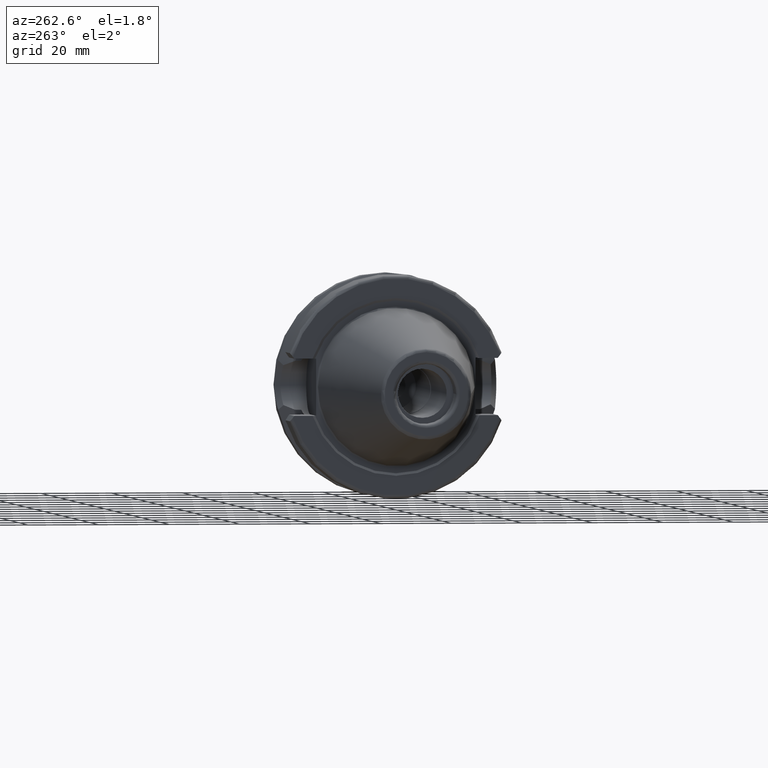
[diagram: clean part render]
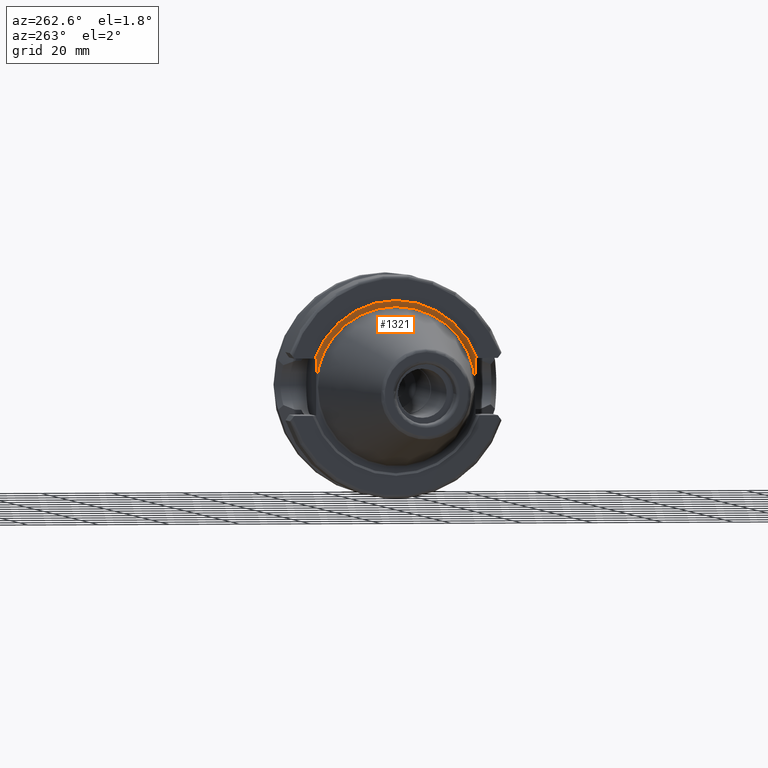
[diagram: same view with one face highlighted and labeled with its STEP entity id]
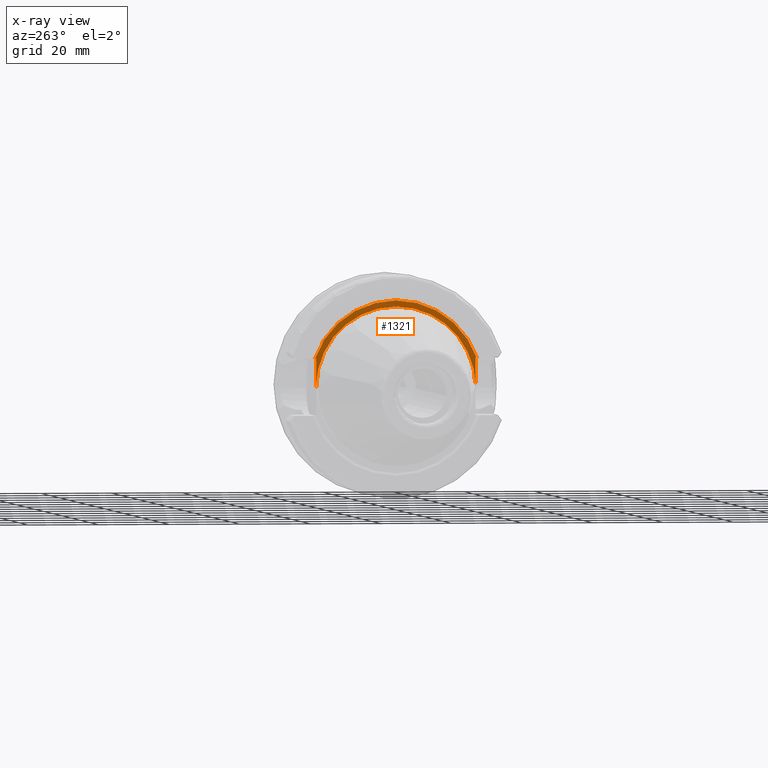
[diagram: x-ray of the same camera — body ghosted, the highlighted face saturated]
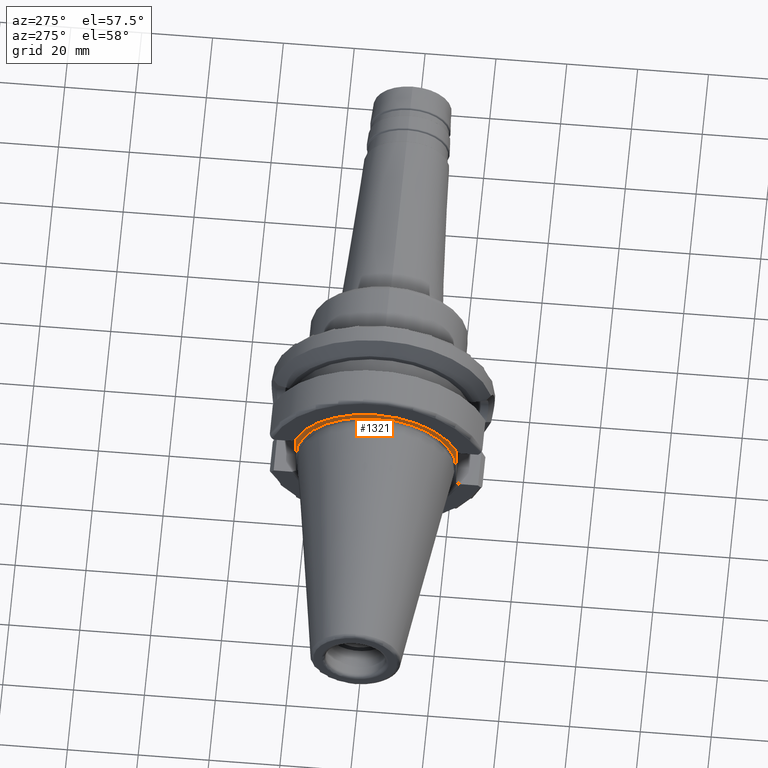
[diagram: same view with one face highlighted and labeled with its STEP entity id]
A machine part, auxiliary view. The second image highlights one B-rep face of the part: STEP entity #1321.
The next image is the same camera in x-ray: the body ghosted, the highlighted face saturated — about 0% of this face is hidden behind the body in this view.
A second angle (auxiliary view) of the same face is appended — the face is thin or edge-on in the first view.
In plain terms, the highlighted planar face has unit normal (-1, 0, 0).
Its self-contained STEP definition (entity closure, byte-faithful):
#87=PLANE('',#1491);
#139=LINE('',#2456,#210);
#144=LINE('',#2470,#215);
#153=LINE('',#2515,#224);
#154=LINE('',#2517,#225);
#210=VECTOR('',#1823,10.);
#215=VECTOR('',#1830,10.);
#224=VECTOR('',#1849,10.);
#225=VECTOR('',#1850,10.);
#317=FACE_OUTER_BOUND('',#404,.T.);
#404=EDGE_LOOP('',(#1109,#1110,#1111,#1112,#1113,#1114,#1115));
#499=CIRCLE('',#1492,24.3071796769724);
#500=CIRCLE('',#1493,22.6);
#501=CIRCLE('',#1494,22.6);
#611=VERTEX_POINT('',#2451);
#612=VERTEX_POINT('',#2455);
#617=VERTEX_POINT('',#2469);
#626=VERTEX_POINT('',#2512);
#627=VERTEX_POINT('',#2514);
#628=VERTEX_POINT('',#2516);
#629=VERTEX_POINT('',#2518);
#780=EDGE_CURVE('',#612,#611,#139,.T.);
#786=EDGE_CURVE('',#617,#612,#144,.T.);
#800=EDGE_CURVE('',#626,#611,#499,.T.);
#801=EDGE_CURVE('',#626,#627,#153,.T.);
#802=EDGE_CURVE('',#627,#628,#154,.T.);
#803=EDGE_CURVE('',#628,#629,#500,.T.);
#804=EDGE_CURVE('',#629,#617,#501,.T.);
#1109=ORIENTED_EDGE('',*,*,#786,.T.);
#1110=ORIENTED_EDGE('',*,*,#780,.T.);
#1111=ORIENTED_EDGE('',*,*,#800,.F.);
#1112=ORIENTED_EDGE('',*,*,#801,.T.);
#1113=ORIENTED_EDGE('',*,*,#802,.T.);
#1114=ORIENTED_EDGE('',*,*,#803,.T.);
#1115=ORIENTED_EDGE('',*,*,#804,.T.);
#1321=ADVANCED_FACE('',(#317),#87,.T.);
#1491=AXIS2_PLACEMENT_3D('',#2511,#1845,#1846);
#1492=AXIS2_PLACEMENT_3D('',#2513,#1847,#1848);
#1493=AXIS2_PLACEMENT_3D('',#2519,#1851,#1852);
#1494=AXIS2_PLACEMENT_3D('',#2520,#1853,#1854);
#1823=DIRECTION('',(0.,-1.,0.));
#1830=DIRECTION('',(0.,0.,1.));
#1845=DIRECTION('center_axis',(-1.,0.,0.));
#1846=DIRECTION('ref_axis',(0.,0.,1.));
#1847=DIRECTION('center_axis',(1.,0.,0.));
#1848=DIRECTION('ref_axis',(0.,0.,-1.));
#1849=DIRECTION('',(0.,-1.,0.));
#1850=DIRECTION('',(0.,0.,-1.));
#1851=DIRECTION('center_axis',(1.,0.,0.));
#1852=DIRECTION('ref_axis',(0.,0.,-1.));
#1853=DIRECTION('center_axis',(1.,0.,0.));
#1854=DIRECTION('ref_axis',(0.,0.,-1.));
#2451=CARTESIAN_POINT('',(1.4,-22.9354852542653,8.05));
#2455=CARTESIAN_POINT('',(1.4,-22.6,8.05));
#2456=CARTESIAN_POINT('',(1.4,0.853589838486224,8.05));
#2469=CARTESIAN_POINT('',(1.4,-22.6,0.));
#2470=CARTESIAN_POINT('',(1.4,-22.6,2.77555756156289E-16));
#2511=CARTESIAN_POINT('Origin',(1.4,24.3071796769724,0.));
#2512=CARTESIAN_POINT('',(1.4,22.9354852542653,8.05));
#2513=CARTESIAN_POINT('Origin',(1.4,0.,0.));
#2514=CARTESIAN_POINT('',(1.4,22.6,8.05));
#2515=CARTESIAN_POINT('',(1.4,23.4535898384862,8.05));
#2516=CARTESIAN_POINT('',(1.4,22.6,0.));
#2517=CARTESIAN_POINT('',(1.4,22.6,2.77555756156289E-16));
#2518=CARTESIAN_POINT('',(1.4,-2.76770176607302E-15,22.6));
#2519=CARTESIAN_POINT('Origin',(1.4,0.,0.));
#2520=CARTESIAN_POINT('Origin',(1.4,0.,0.));